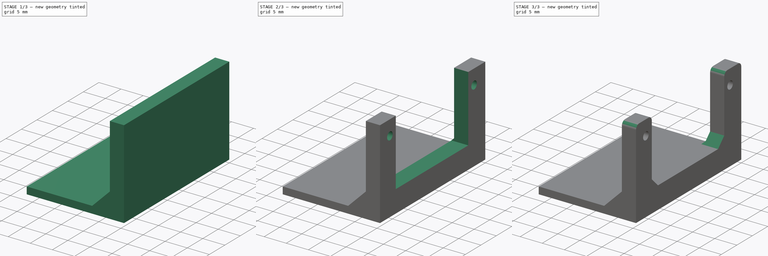
[diagram: build sequence overview — one tinted view per stage of 3, left to right]
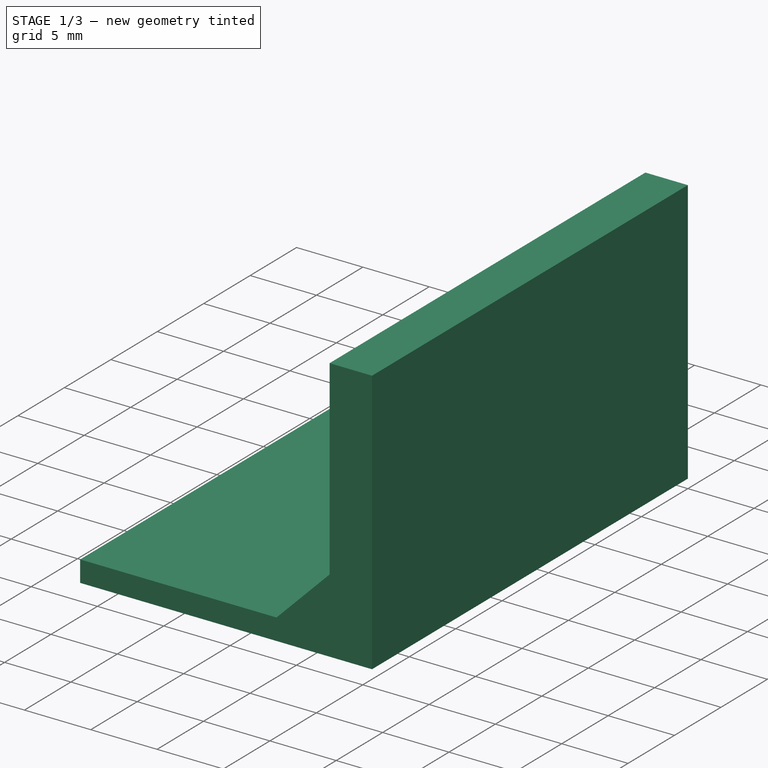
[diagram: stage 1 of 3 — iso view after this stage's code; geometry added in this stage tinted green]
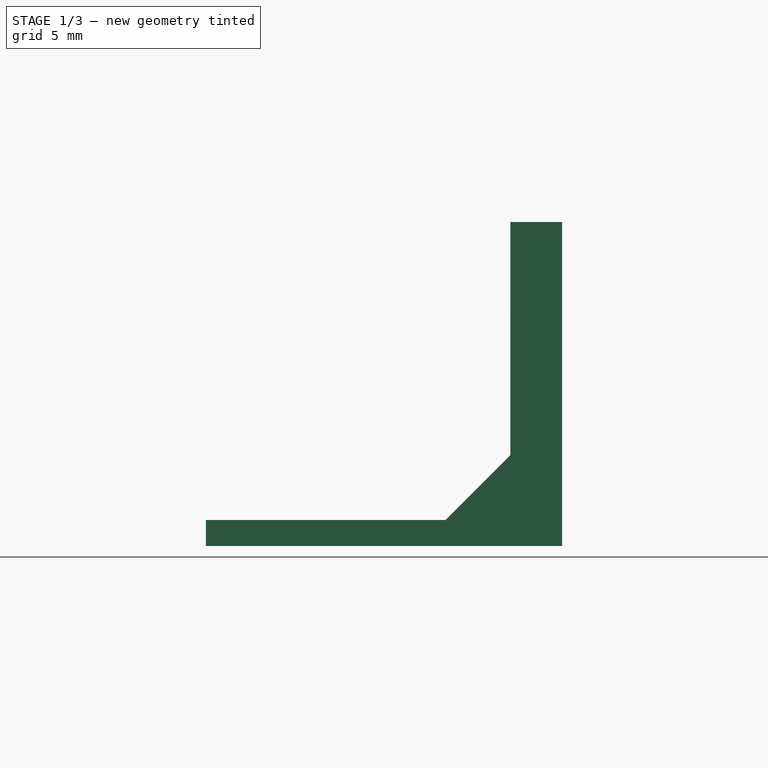
[diagram: stage 1 of 3 — front view after this stage's code; geometry added in this stage tinted green]
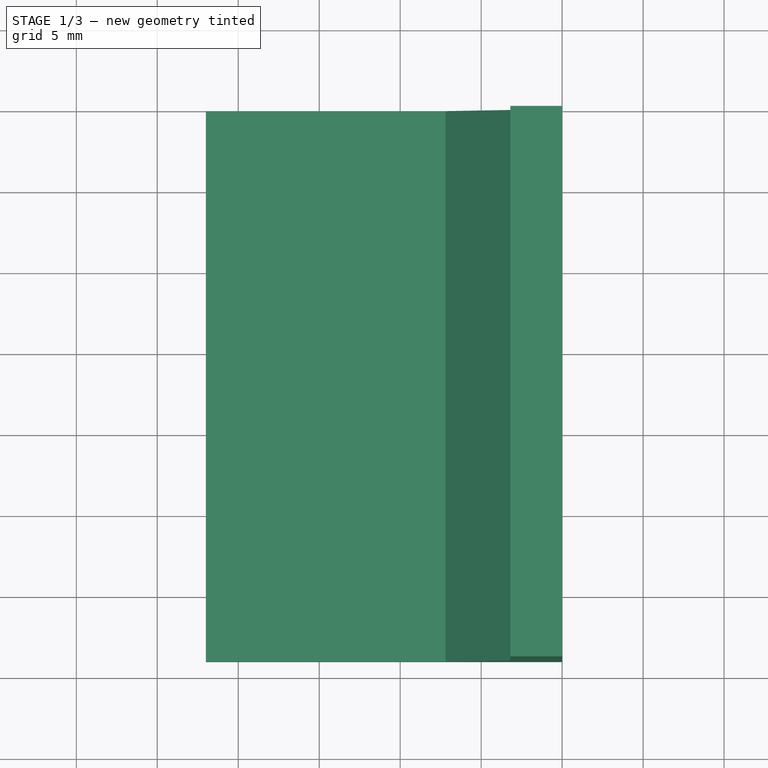
[diagram: stage 1 of 3 — top view after this stage's code; geometry added in this stage tinted green]
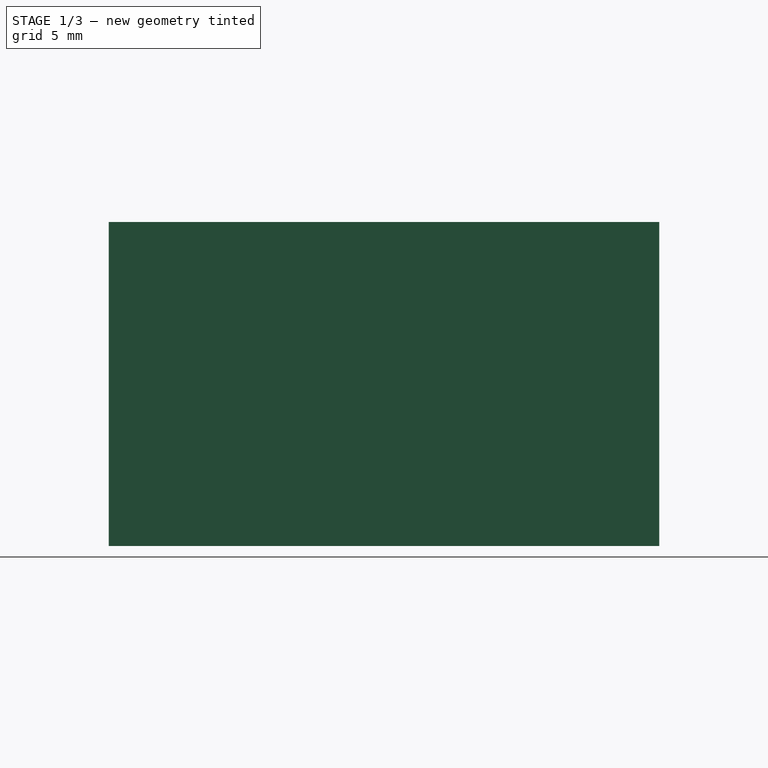
[diagram: stage 1 of 3 — right view after this stage's code; geometry added in this stage tinted green]
FCSTD DOCUMENT  (FreeCAD 0.20R29603 (Git))
Label: Digit_80x20_Bracket
License: All rights reserved
LicenseURL: http://en.wikipedia.org/wiki/All_rights_reserved
objects: Sketcher::SketchObject×4, PartDesign::Pad×2, PartDesign::Plane×2, PartDesign::Pocket×2, PartDesign::LinearPattern×1, PartDesign::Fillet×1, PartDesign::Chamfer×1, PartDesign::Body×1
note: 20 computed .brp shape members not serialized (recipe doc carries the construction recipe); baked Part::Feature solids carry a one-line shape summary decoded from their .brp

FEATURE [Sketcher::SketchObject] Sketch001
  FullyConstrained = true
  MapMode = 5
  Placement = pos=(0,0,0) rot=(1,0,0;1.5708rad)
  Support = -> [XZ_Plane]
  sketch-geometry (7):
    g0: LineSegment StartX=-22 StartY=1.6 StartZ=0 EndX=-7.2 EndY=1.6 EndZ=0
    g1: LineSegment StartX=-3.2 StartY=20 StartZ=0 EndX=0 EndY=20 EndZ=0
    g2: LineSegment StartX=0 StartY=20 StartZ=0 EndX=0 EndY=0 EndZ=0
    g3: LineSegment StartX=0 StartY=0 StartZ=0 EndX=-22 EndY=0 EndZ=0
    g4: LineSegment StartX=-22 StartY=0 StartZ=0 EndX=-22 EndY=1.6 EndZ=0
    g5: LineSegment StartX=-3.2 StartY=20 StartZ=0 EndX=-3.2 EndY=5.6 EndZ=0
    g6: LineSegment StartX=-3.2 StartY=5.6 StartZ=0 EndX=-7.2 EndY=1.6 EndZ=0
  constraints (20):
    c: Horizontal(g0)
    c: Coincident(g1,g2)
    c: Coincident(g2,g-1)
    c: Vertical(g2)
    c: Coincident(g2,g3)
    c: PointOnObject(g3,g-1)
    c: Coincident(g3,g4)
    c: Coincident(g4,g0)
    c: Vertical(g4)
    c: Horizontal(g1)
    c: DistanceY(g2,g1) = 20
    c: DistanceX(g3,g2) = 22
    c: DistanceY(g3,g0) = 1.6
    c: DistanceX(g1,g1) = 3.2
    c: Coincident(g5,g1)
    c: Vertical(g5)
    c: Coincident(g6,g5)
    c: Coincident(g6,g0)
    c: Angle(g-1,g6) = 0.785398
    c: DistanceY(g2,g5) = 5.6
FEATURE [PartDesign::Pad] Pad  label="Bracket"
  Direction = (0,-1,2e-16)
  Length = 34
  Length2 = 10
  Placement = pos=(0,0,0) rot=(1,0,0;1.5708rad)
  Profile = -> Sketch001
  ReferenceAxis = -> Sketch001 [N_Axis]
  Type = 0
FEATURE [Sketcher::SketchObject] Sketch002
  FullyConstrained = true
  MapMode = 5
  Placement = pos=(0,0,0) rot=(1,0,0;1.5708rad)
  Support = -> [XZ_Plane]
  sketch-geometry (3):
    g0: LineSegment StartX=-6.6 StartY=1.5 StartZ=0 EndX=-1.5 EndY=6.6 EndZ=0
    g1: LineSegment StartX=-6.6 StartY=1.5 StartZ=0 EndX=-1.5 EndY=1.5 EndZ=0
    g2: LineSegment StartX=-1.5 StartY=6.6 StartZ=0 EndX=-1.5 EndY=1.5 EndZ=0
  constraints (9):
    c: Coincident(g1,g0)
    c: Horizontal(g1)
    c: Coincident(g2,g0)
    c: Coincident(g2,g1)
    c: Vertical(g2)
    c: DistanceY(g2,g2) = 5.1
    c: DistanceX(g0,g1) = 5.1
    c: DistanceY(g-1,g0) = 1.5
    c: DistanceX(g-1,g1) = -1.5
FEATURE [PartDesign::Pad] Pad001  label="Nerve"
  BaseFeature = -> Pad
  Direction = (0,-1,2e-16)
  Length = 1.6
  Length2 = 10
  Placement = pos=(0,0,0) rot=(1,0,0;1.5708rad)
  Profile = -> Sketch002
  ReferenceAxis = -> Sketch002 [N_Axis]
  Type = 0
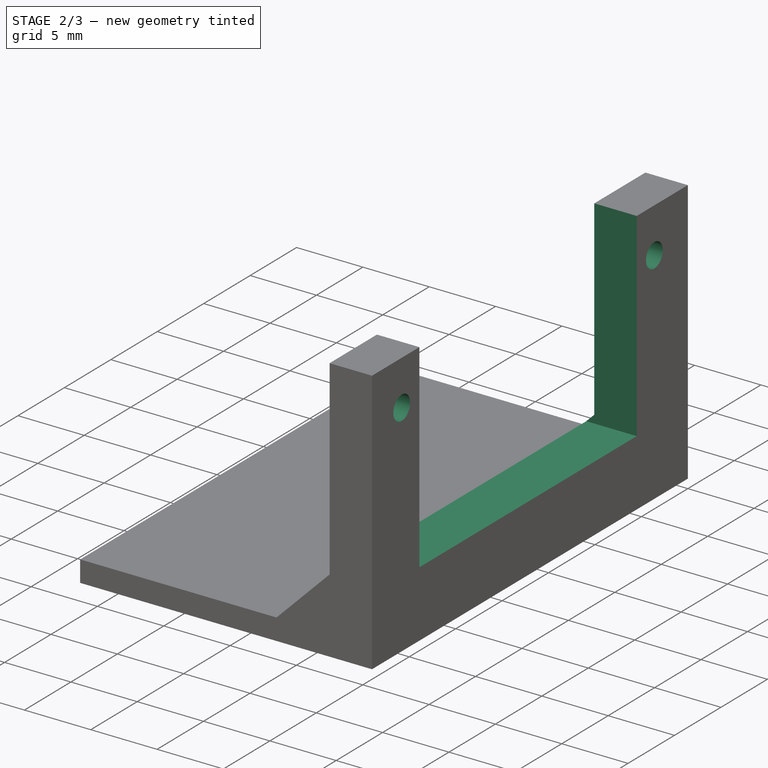
[diagram: stage 2 of 3 — iso view after this stage's code; geometry added in this stage tinted green]
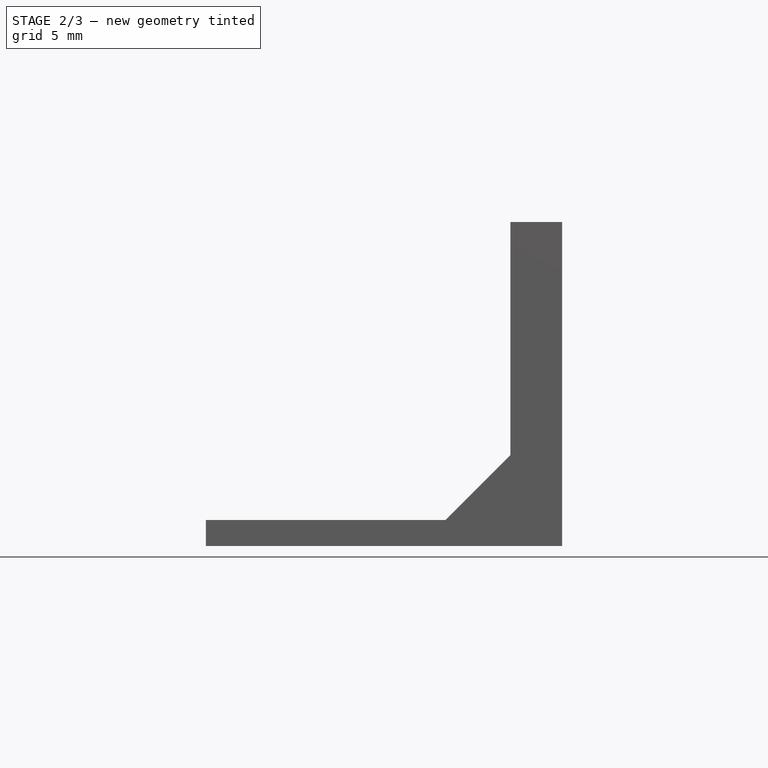
[diagram: stage 2 of 3 — front view after this stage's code; geometry added in this stage tinted green]
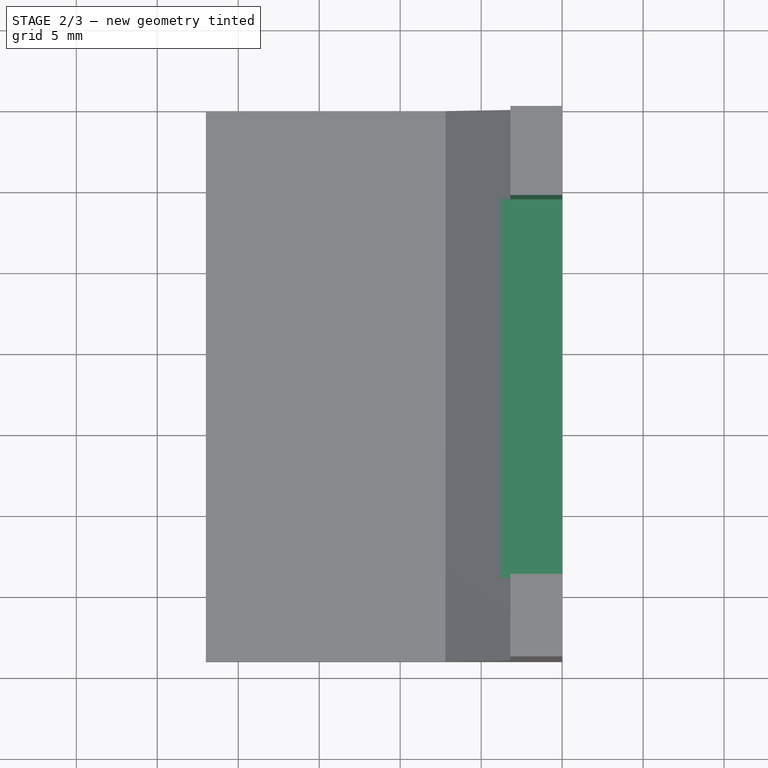
[diagram: stage 2 of 3 — top view after this stage's code; geometry added in this stage tinted green]
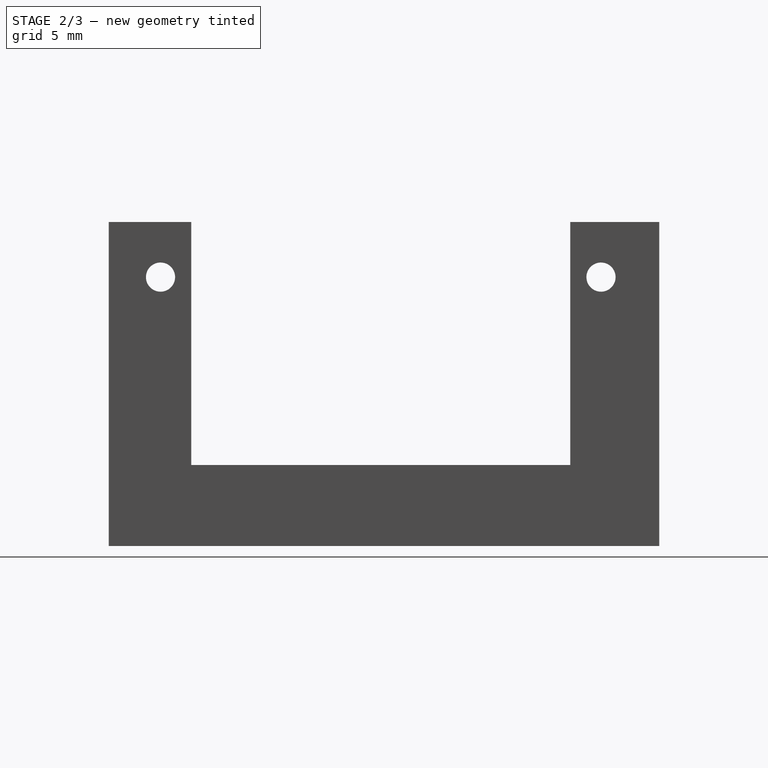
[diagram: stage 2 of 3 — right view after this stage's code; geometry added in this stage tinted green]
FEATURE [PartDesign::LinearPattern] LinearPattern  label="Nerve2"
  BaseFeature = -> Pad001
  Direction = -> Y_Axis
  Length = 32.4
  Occurrences = 2
  Originals = -> [Pad001]
  Placement = pos=(0,0,0) rot=(1,0,0;1.5708rad)
  Reversed = true
FEATURE [PartDesign::Plane] DatumPlane
  Length = 60
  MapMode = 5
  Placement = pos=(0,0,0) rot=(0.707107,0,0.707107;3.14159rad)
  ResizeMode = 1
  Support = -> [LinearPattern]
  Width = 100
FEATURE [Sketcher::SketchObject] Sketch
  FullyConstrained = false
  MapMode = 5
  Placement = pos=(0,0,0) rot=(0.707107,0,0.707107;3.14159rad)
  Support = -> [DatumPlane]
  sketch-geometry (3):
    g0: Circle CenterX=16.6 CenterY=30.8 CenterZ=0 NormalX=0 NormalY=0 NormalZ=1 AngleXU=0 Radius=0.9
    g1: LineSegment StartX=24.4105 StartY=17.2 StartZ=0 EndX=-11.039 EndY=17.2 EndZ=0
    g2: Circle CenterX=16.6 CenterY=3.6 CenterZ=0 NormalX=0 NormalY=0 NormalZ=1 AngleXU=0 Radius=0.9
  constraints (7):
    c: Horizontal(g1)
    c: DistanceY(g-1,g1) = 17.2
    c: Diameter(g0) = 1.8
    c: Equal(g0,g2)
    c: Symmetric(g2,g0,g1)
    c: DistanceX(g-1,g0) = 16.6
    c: DistanceY(g2,g0) = 27.2
FEATURE [PartDesign::Pocket] Pocket  label="ScrewHoles"
  BaseFeature = -> LinearPattern
  Direction = (-1,0,2e-16)
  Length = 5
  Length2 = 5
  Placement = pos=(0,0,0) rot=(1,0,0;1.5708rad)
  Profile = -> Sketch
  ReferenceAxis = -> Sketch [N_Axis]
  Type = 1
FEATURE [PartDesign::Plane] DatumPlane001
  Length = 60
  MapMode = 5
  Placement = pos=(0,0,0) rot=(0.707107,0,0.707107;3.14159rad)
  ResizeMode = 0
  Support = -> [Pocket,DatumPlane]
  Width = 60
FEATURE [Sketcher::SketchObject] Sketch003
  FullyConstrained = true
  MapMode = 5
  Placement = pos=(0,0,0) rot=(0.707107,0,0.707107;3.14159rad)
  Support = -> [DatumPlane001]
  sketch-geometry (4):
    g0: LineSegment StartX=5 StartY=28.9 StartZ=0 EndX=22 EndY=28.9 EndZ=0
    g1: LineSegment StartX=22 StartY=28.9 StartZ=0 EndX=22 EndY=5.5 EndZ=0
    g2: LineSegment StartX=22 StartY=5.5 StartZ=0 EndX=5 EndY=5.5 EndZ=0
    g3: LineSegment StartX=5 StartY=5.5 StartZ=0 EndX=5 EndY=28.9 EndZ=0
  constraints (12):
    c: Coincident(g0,g1)
    c: Coincident(g1,g2)
    c: Coincident(g2,g3)
    c: Coincident(g3,g0)
    c: Horizontal(g0)
    c: Horizontal(g2)
    c: Vertical(g1)
    c: Vertical(g3)
    c: DistanceY(g1,g0) = 23.4
    c: DistanceX(g0,g0) = 17
    c: DistanceX(g-1,g2) = 5
    c: DistanceY(g-1,g2) = 5.5
FEATURE [PartDesign::Pocket] Pocket001  label="MotorGap"
  BaseFeature = -> Pocket
  Direction = (-1,0,2e-16)
  Length = 5
  Length2 = 5
  Placement = pos=(0,0,0) rot=(1,0,0;1.5708rad)
  Profile = -> Sketch003
  ReferenceAxis = -> Sketch003 [N_Axis]
  Type = 1
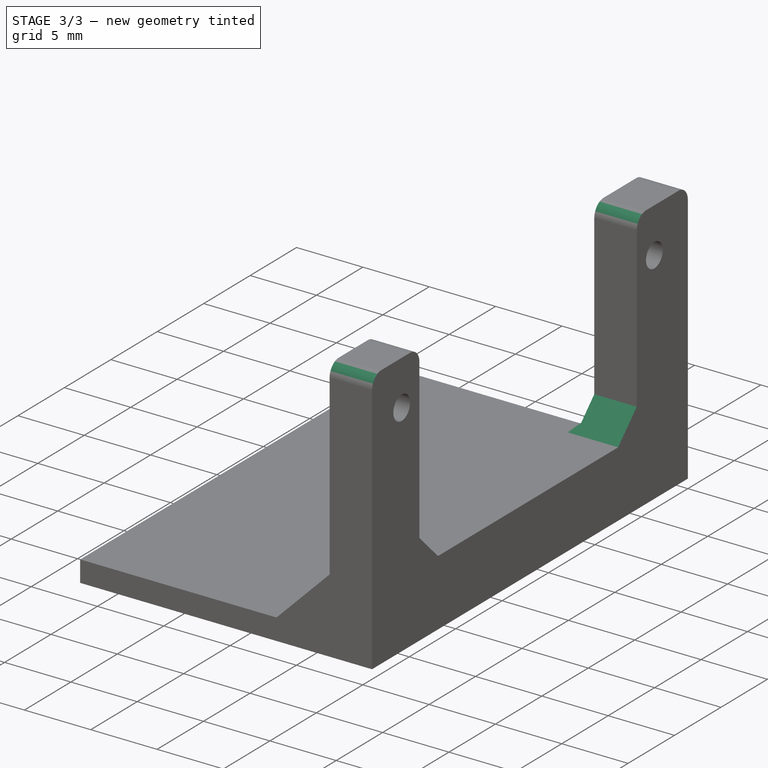
[diagram: stage 3 of 3 — iso view after this stage's code; geometry added in this stage tinted green]
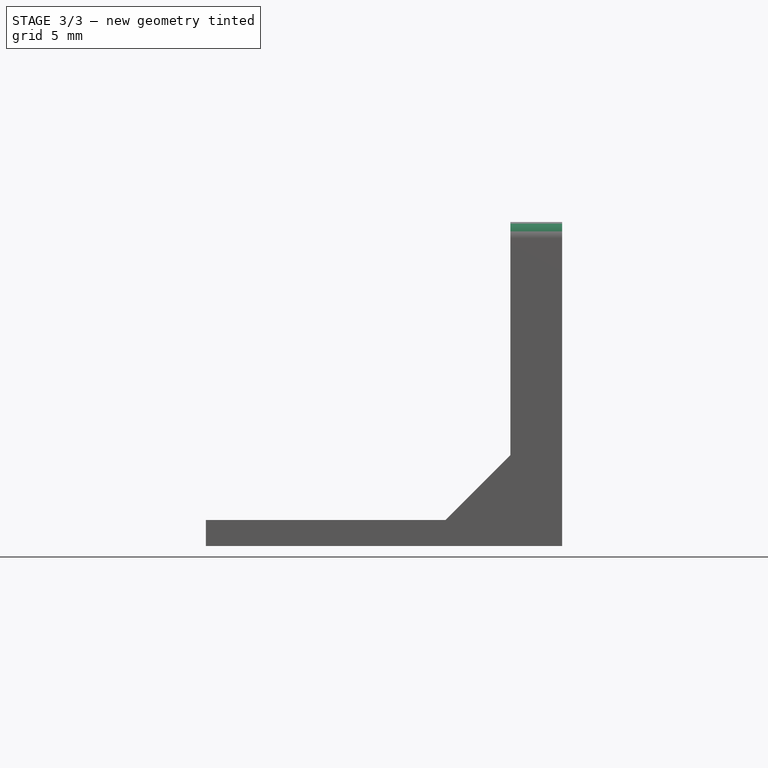
[diagram: stage 3 of 3 — front view after this stage's code; geometry added in this stage tinted green]
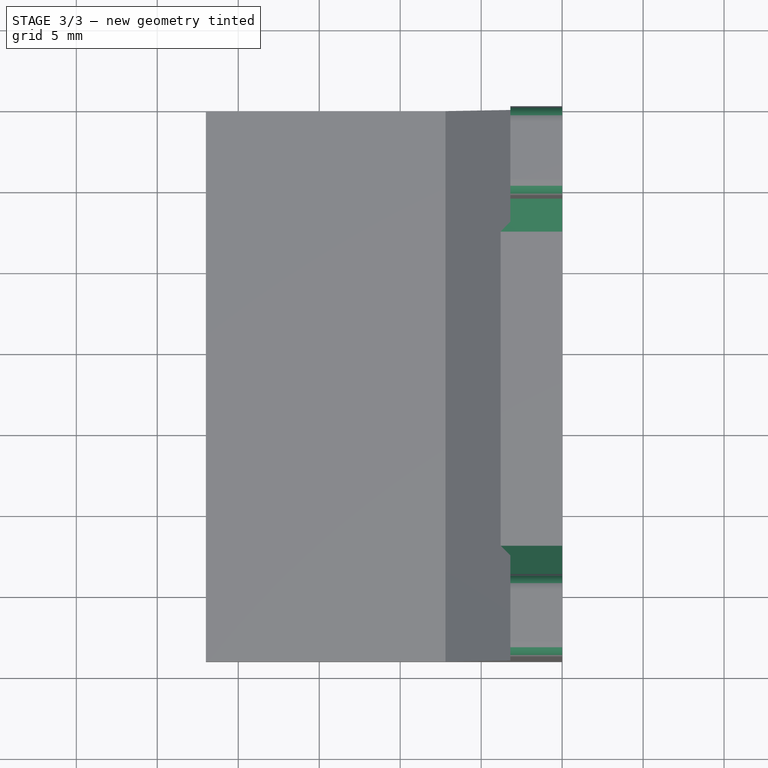
[diagram: stage 3 of 3 — top view after this stage's code; geometry added in this stage tinted green]
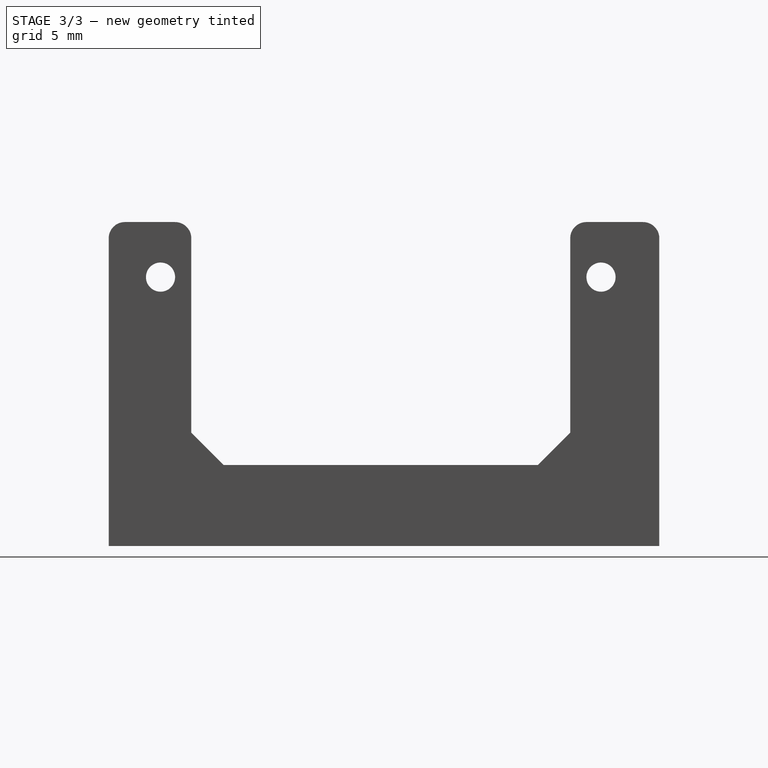
[diagram: stage 3 of 3 — right view after this stage's code; geometry added in this stage tinted green]
FEATURE [PartDesign::Fillet] Fillet
  Base = -> Pocket001 [Edge37,Edge42,Edge3,Edge1]
  BaseFeature = -> Pocket001
  Placement = pos=(0,0,0) rot=(1,0,0;1.5708rad)
  Radius = 1
  SupportTransform = false
  UseAllEdges = false
FEATURE [PartDesign::Chamfer] Chamfer
  Angle = 45
  Base = -> Fillet [Edge49,Edge45]
  BaseFeature = -> Fillet
  ChamferType = 0
  FlipDirection = false
  Placement = pos=(0,0,0) rot=(1,0,0;1.5708rad)
  Size = 2
  Size2 = 1
  SupportTransform = false
  UseAllEdges = false
FEATURE [PartDesign::Body] Body
  Group = -> [Sketch001,Pad,Sketch002,Pad001,LinearPattern,DatumPlane,Sketch,Pocket,DatumPlane001,Sketch003,Pocket001,Fillet,Chamfer]
  Origin = -> Origin
  Tip = -> Chamfer
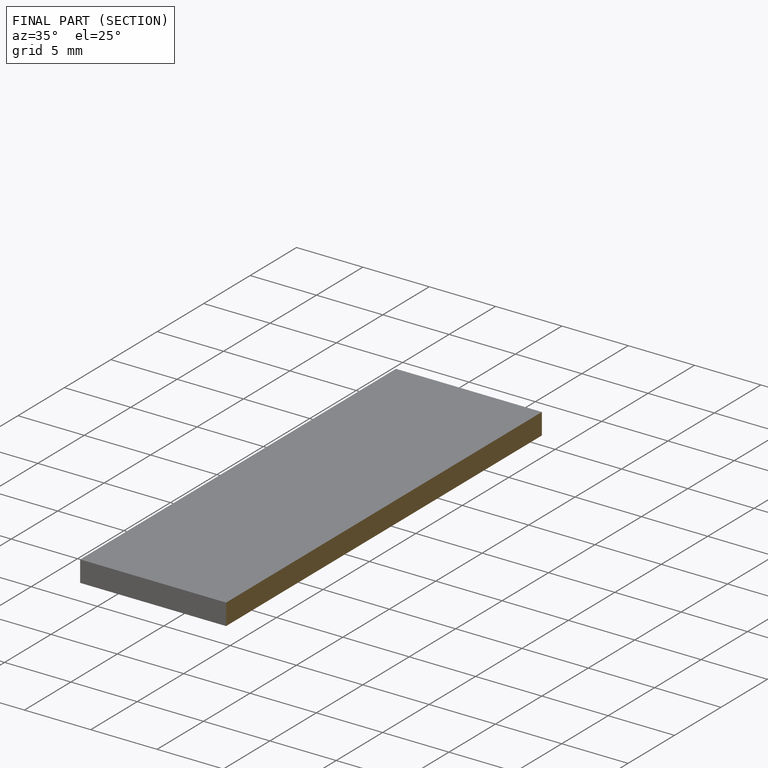
[diagram: finished part — half-section view (interior)]
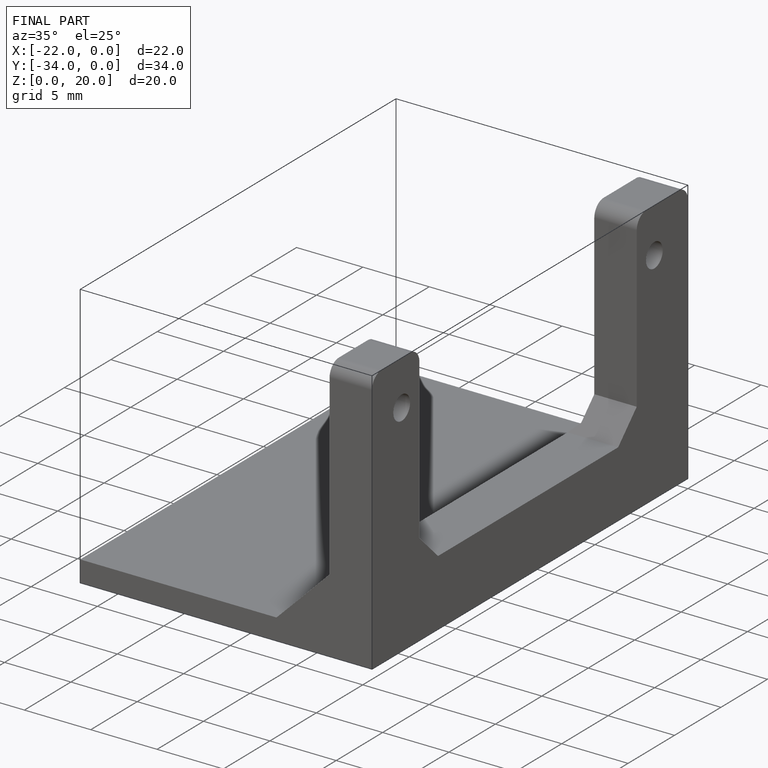
[diagram: finished part — iso view with bounding-box wireframe]
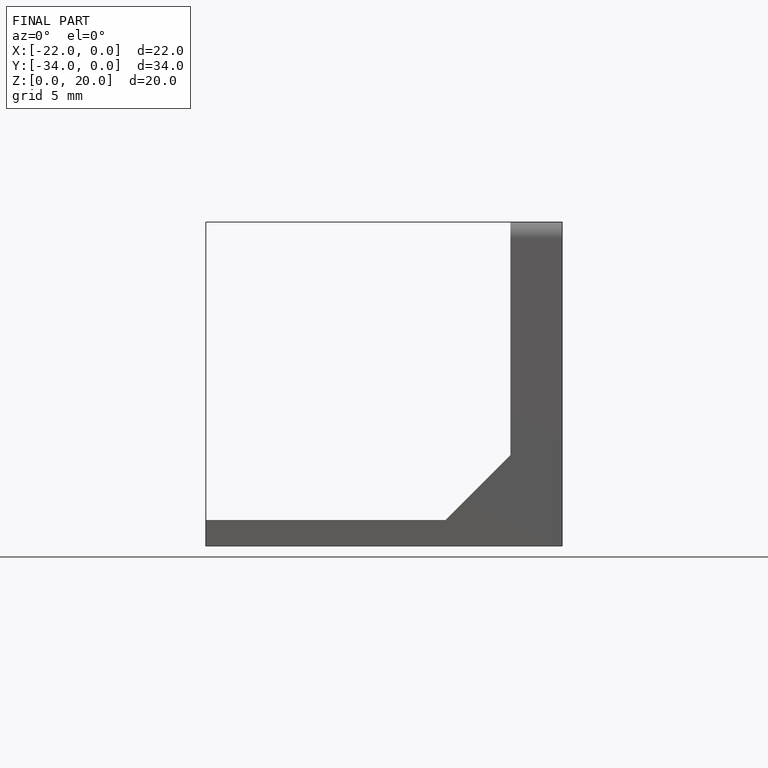
[diagram: finished part — front view with bounding-box wireframe]
